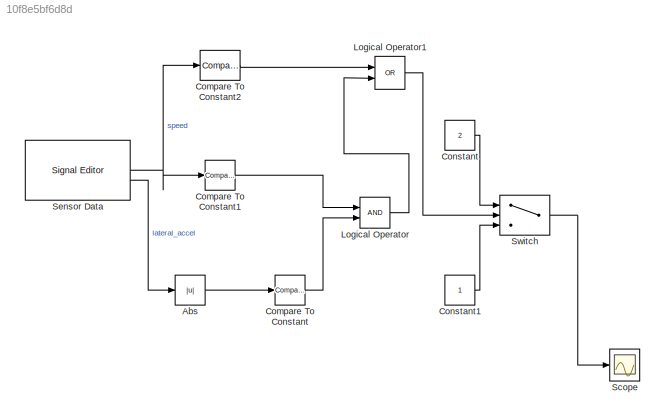
MODEL slx_10f8e5bf6d8d
KIND model
CONFIG AbsTol = auto
CONFIG EnableMultiTasking = off
CONFIG FixedStep = auto
CONFIG MaxStep = auto
CONFIG MinStep = auto
CONFIG RelTol = 1e-3
CONFIG SampleTimeConstraint = Unconstrained
CONFIG SolverName = VariableStepAuto
CONFIG StartFcn = learning.simulink.modelCallbacks.startFunction(gcs)
CONFIG StartTime = 0.0
CONFIG StopFcn = learning.simulink.modelCallbacks.stopFunction(gcs);
CONFIG StopTime = 10.0
WORKSPACE source: mxarray member
WORKSPACE courseObject: object (value not decoded)
WORKSPACE t_ans = [0 0.1 0.1 0.2 0.3 0.4 0.5 0.6 0.7 0.8 0.9 1 ... (113 elements, 113x1)]
WORKSPACE y_ans3 = [0 0 0 0 0 0 0 0 0 0 0 0 ... (113 elements, 113x1)]
WORKSPACE y_ans4 = [0 0 0 0 0 0 0 0 0 0 0 0 ... (113 elements, 113x1)]
WORKSPACE y_ans5 = [1 1 1 1 1 1 1 1 1 1 1 1 ... (113 elements, 113x1)]
BLOCK [Abs] Abs
  SaturateOnIntegerOverflow = off
BLOCK [Reference] Compare To Constant  REF=simulink/Logic and Bit
Operations/Compare
To Constant
  SourceBlock = simulink/Logic and Bit\nOperations/Compare\nTo Constant
  SourceType = Compare To Constant
BLOCK [Reference] Compare To Constant1  REF=simulink/Logic and Bit
Operations/Compare
To Constant
  SourceBlock = simulink/Logic and Bit\nOperations/Compare\nTo Constant
  SourceType = Compare To Constant
BLOCK [Reference] Compare To Constant2  REF=simulink/Logic and Bit
Operations/Compare
To Constant
  SourceBlock = simulink/Logic and Bit\nOperations/Compare\nTo Constant
  SourceType = Compare To Constant
BLOCK [Constant] Constant
  Value = 2
BLOCK [Constant] Constant1
BLOCK [Logic] Logical Operator
  AllPortsSameDT = off
  OutDataTypeStr = boolean
BLOCK [Logic] Logical Operator1
  AllPortsSameDT = off
  Operator = OR
  OutDataTypeStr = boolean
BLOCK [Scope] Scope
  Floating = off
  NumInputPorts = 1
  ScopeSpecificationString = Simulink.scopes.TimeScopeBlockCfg('CurrentConfiguration', extmgr.ConfigurationSet(extmgr.Configuration('Core','General UI',true),extmgr.Configuration('Core','Source UI',true),extmgr.Configuration('Sources','WiredSimulink',true),extmgr.Configuration('Visuals','Time Domain',true,'SerializedDisplays',{struct('MinYLimReal','0.875','MaxYLimReal','2.125','YLabelReal','','MinYLimMag','0.875','MaxYLimMag'...<+2898ch>
BLOCK [Reference] Sensor Data  REF=SignalEditorBlockLib/Signal Editor
  SourceBlock = SignalEditorBlockLib/Signal Editor
  SourceType = SignalEditor
  UserDataPersistent = on
BLOCK [Switch] Switch
  Criteria = u2 > Threshold
  InputSameDT = off
  SaturateOnIntegerOverflow = off
LINE Abs:1 -> Compare To Constant:1
LINE Compare To Constant1:1 -> Logical Operator:1
LINE Compare To Constant2:1 -> Logical Operator1:1
LINE Compare To Constant:1 -> Logical Operator:2
LINE Constant1:1 -> Switch:3
LINE Constant:1 -> Switch:1
LINE Logical Operator1:1 -> Switch:2
LINE Logical Operator:1 -> Logical Operator1:2
NET Sensor Data:1 -> Compare To Constant1:1, Compare To Constant2:1
LINE Sensor Data:2 -> Abs:1
LINE Switch:1 -> Scope:1
note: NET lines group one-source signal fan-out (src -> all destinations, sorted); 1:1 wires keep LINE
